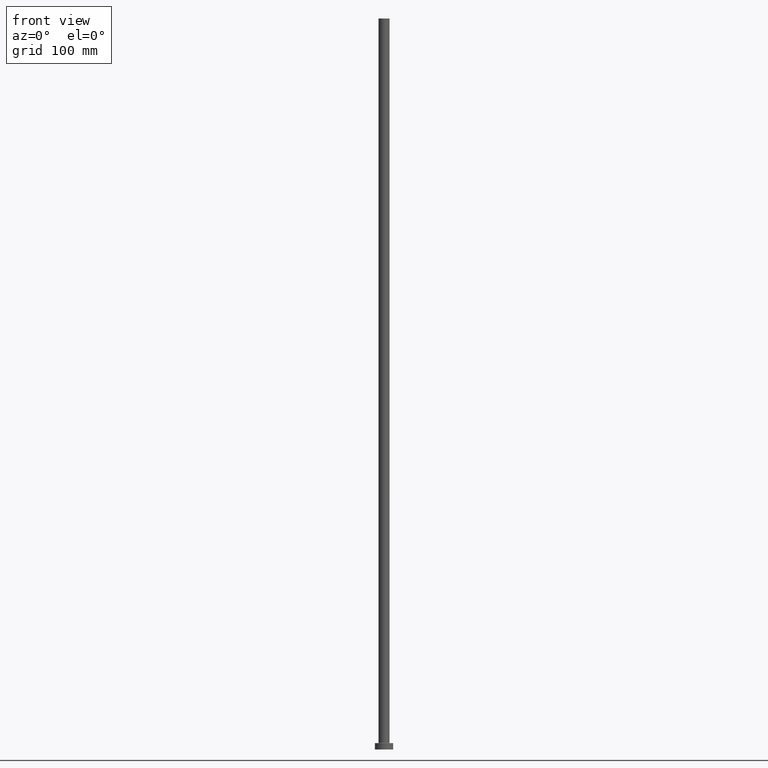
[diagram: clean part render]
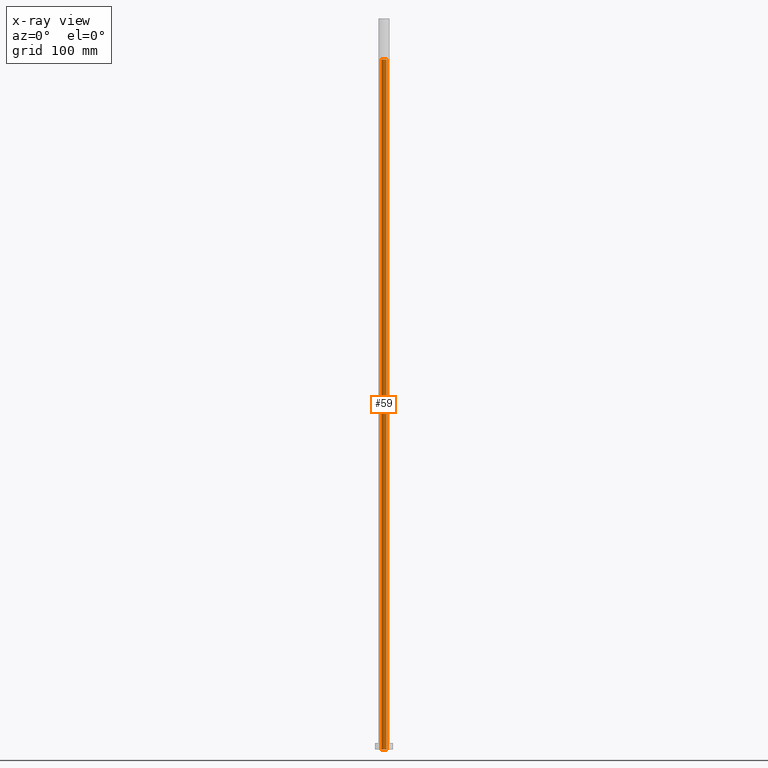
[diagram: x-ray — body ghosted, one internal face saturated and labeled with its STEP entity id]
A machine part, front view, then the same camera in x-ray: the body is ghosted and one INTERNAL B-rep face — a face not visible from any outside direction — is saturated and labeled: STEP entity #59.
In plain terms, the highlighted cylindrical surface (edge-blend (fillet) strip) has radius 2.9 mm, axis along (0, 0, -1).
Its self-contained STEP definition (entity closure, byte-faithful):
#6 = DIRECTION ( 'NONE',  ( -0.000000000000000000, -0.000000000000000000, -1.000000000000000000 ) ) ;
#22 = EDGE_LOOP ( 'NONE', ( #414, #383, #408, #239 ) ) ;
#29 = CARTESIAN_POINT ( 'NONE',  ( 2.899999999999999911, 3.551475717527323832E-16, 0.000000000000000000 ) ) ;
#46 = CARTESIAN_POINT ( 'NONE',  ( 0.000000000000000000, 0.000000000000000000, 0.000000000000000000 ) ) ;
#49 = EDGE_CURVE ( 'NONE', #360, #118, #289, .T. ) ;
#51 = DIRECTION ( 'NONE',  ( 0.000000000000000000, 0.000000000000000000, -1.000000000000000000 ) ) ;
#59 = ADVANCED_FACE ( 'NONE', ( #146 ), #434, .F. ) ;
#62 = CARTESIAN_POINT ( 'NONE',  ( -2.899999999999999911, 0.000000000000000000, 0.000000000000000000 ) ) ;
#78 = DIRECTION ( 'NONE',  ( 0.000000000000000000, 0.000000000000000000, -1.000000000000000000 ) ) ;
#118 = VERTEX_POINT ( 'NONE', #62 ) ;
#128 = AXIS2_PLACEMENT_3D ( 'NONE', #332, #295, #296 ) ;
#138 = CIRCLE ( 'NONE', #166, 2.899999999999999911 ) ;
#146 = FACE_OUTER_BOUND ( 'NONE', #22, .T. ) ;
#148 = CARTESIAN_POINT ( 'NONE',  ( -2.899999999999999911, 0.000000000000000000, 755.0000000000000000 ) ) ;
#160 = LINE ( 'NONE', #238, #439 ) ;
#166 = AXIS2_PLACEMENT_3D ( 'NONE', #46, #6, #189 ) ;
#189 = DIRECTION ( 'NONE',  ( 1.000000000000000000, 0.000000000000000000, 0.000000000000000000 ) ) ;
#198 = VECTOR ( 'NONE', #51, 1000.000000000000000 ) ;
#201 = EDGE_CURVE ( 'NONE', #360, #342, #341, .T. ) ;
#207 = DIRECTION ( 'NONE',  ( 0.000000000000000000, 0.000000000000000000, -1.000000000000000000 ) ) ;
#238 = CARTESIAN_POINT ( 'NONE',  ( 2.899999999999999911, 3.551475717527323832E-16, 763.2024386617638356 ) ) ;
#239 = ORIENTED_EDGE ( 'NONE', *, *, #49, .F. ) ;
#255 = CARTESIAN_POINT ( 'NONE',  ( -2.899999999999999911, 0.000000000000000000, 763.2024386617638356 ) ) ;
#256 = CARTESIAN_POINT ( 'NONE',  ( 0.000000000000000000, 0.000000000000000000, 763.2024386617638356 ) ) ;
#289 = LINE ( 'NONE', #255, #198 ) ;
#294 = VERTEX_POINT ( 'NONE', #29 ) ;
#295 = DIRECTION ( 'NONE',  ( 0.000000000000000000, 0.000000000000000000, 1.000000000000000000 ) ) ;
#296 = DIRECTION ( 'NONE',  ( 1.000000000000000000, 0.000000000000000000, 0.000000000000000000 ) ) ;
#332 = CARTESIAN_POINT ( 'NONE',  ( 0.000000000000000000, 0.000000000000000000, 755.0000000000000000 ) ) ;
#341 = CIRCLE ( 'NONE', #128, 2.899999999999999911 ) ;
#342 = VERTEX_POINT ( 'NONE', #365 ) ;
#351 = EDGE_CURVE ( 'NONE', #294, #118, #138, .T. ) ;
#360 = VERTEX_POINT ( 'NONE', #148 ) ;
#365 = CARTESIAN_POINT ( 'NONE',  ( 2.899999999999999911, 3.551475717527323832E-16, 755.0000000000000000 ) ) ;
#368 = DIRECTION ( 'NONE',  ( -1.000000000000000000, 0.000000000000000000, 0.000000000000000000 ) ) ;
#383 = ORIENTED_EDGE ( 'NONE', *, *, #440, .T. ) ;
#408 = ORIENTED_EDGE ( 'NONE', *, *, #351, .T. ) ;
#414 = ORIENTED_EDGE ( 'NONE', *, *, #201, .T. ) ;
#434 = CYLINDRICAL_SURFACE ( 'NONE', #449, 2.899999999999999911 ) ;
#439 = VECTOR ( 'NONE', #207, 1000.000000000000000 ) ;
#440 = EDGE_CURVE ( 'NONE', #342, #294, #160, .T. ) ;
#449 = AXIS2_PLACEMENT_3D ( 'NONE', #256, #78, #368 ) ;